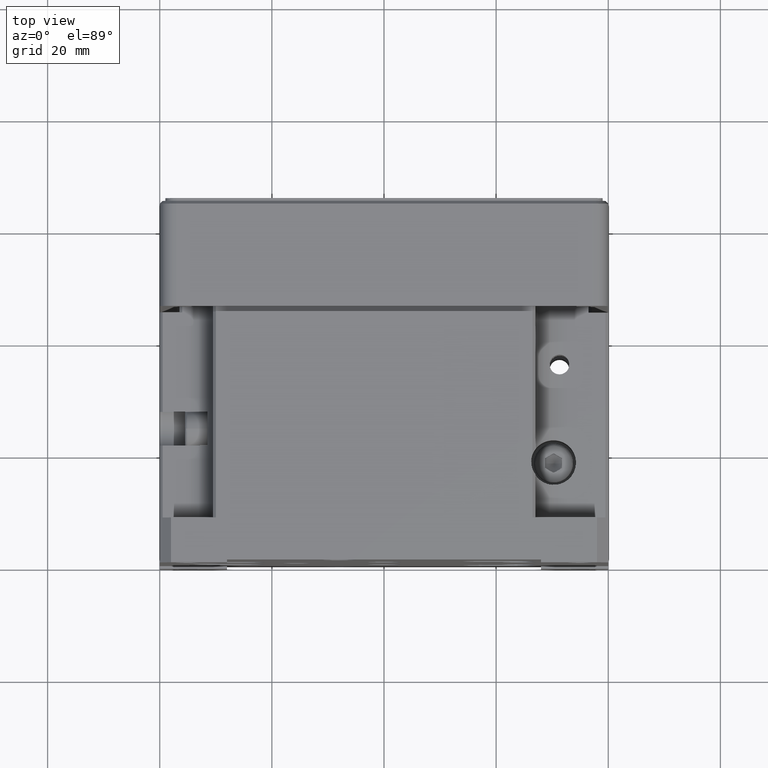
[diagram: clean part render]
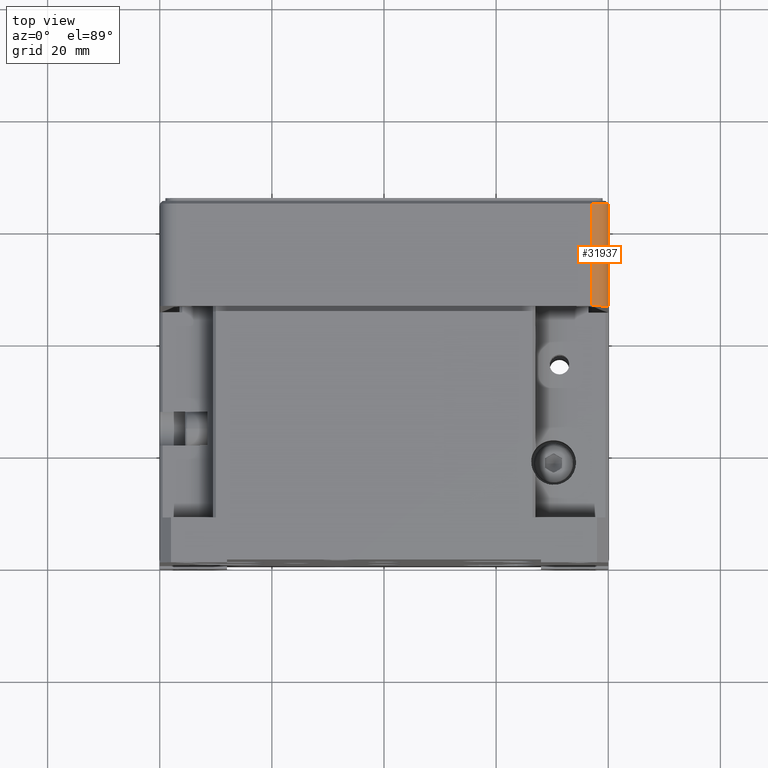
[diagram: same view with one face highlighted and labeled with its STEP entity id]
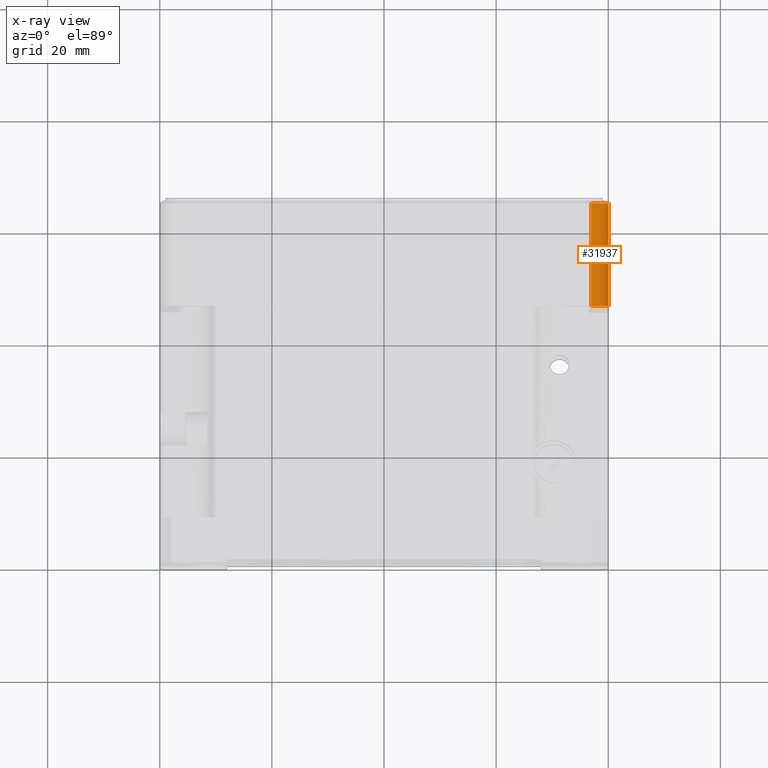
[diagram: x-ray of the same camera — body ghosted, the highlighted face saturated]
A machine part, top view. The second image highlights one B-rep face of the part: STEP entity #31937.
The next image is the same camera in x-ray: the body ghosted, the highlighted face saturated — about 0% of this face is hidden behind the body in this view.
In plain terms, the highlighted cylindrical surface (edge-blend (fillet) strip) has radius 3 mm, axis along (0, -1, 0).
Its self-contained STEP definition (entity closure, byte-faithful):
#2370 = VERTEX_POINT ( 'NONE', #35368 ) ;
#3092 = DIRECTION ( 'NONE',  ( 0.000000000000000000, 0.000000000000000000, -1.000000000000000000 ) ) ;
#3577 = DIRECTION ( 'NONE',  ( -0.000000000000000000, 1.000000000000000000, -0.000000000000000000 ) ) ;
#3825 = CYLINDRICAL_SURFACE ( 'NONE', #6919, 3.000000000000002665 ) ;
#5807 = LINE ( 'NONE', #11072, #12939 ) ;
#6391 = ORIENTED_EDGE ( 'NONE', *, *, #15008, .T. ) ;
#6778 = CARTESIAN_POINT ( 'NONE',  ( 37.00000000000000000, 45.75000000000001421, 36.99999999999998579 ) ) ;
#6919 = AXIS2_PLACEMENT_3D ( 'NONE', #26755, #32570, #35000 ) ;
#7207 = CARTESIAN_POINT ( 'NONE',  ( 40.00000000000000000, 64.50000000000000000, 36.99999999999998579 ) ) ;
#9305 = CARTESIAN_POINT ( 'NONE',  ( 37.00000000000000711, 63.99999999999647571, 40.00000000000351008 ) ) ;
#11072 = CARTESIAN_POINT ( 'NONE',  ( 37.00000000000000000, 64.50000000000000000, 39.99999999999998579 ) ) ;
#12939 = VECTOR ( 'NONE', #17465, 1000.000000000000000 ) ;
#13823 = CARTESIAN_POINT ( 'NONE',  ( 37.00000000000000000, 64.00000000000000000, 36.99999999999998579 ) ) ;
#14150 = AXIS2_PLACEMENT_3D ( 'NONE', #13823, #19822, #3092 ) ;
#15008 = EDGE_CURVE ( 'NONE', #26965, #25719, #5807, .T. ) ;
#15676 = LINE ( 'NONE', #7207, #20547 ) ;
#15924 = EDGE_CURVE ( 'NONE', #25719, #2370, #18389, .T. ) ;
#16390 = VERTEX_POINT ( 'NONE', #33391 ) ;
#17137 = AXIS2_PLACEMENT_3D ( 'NONE', #6778, #3577, #24065 ) ;
#17244 = EDGE_CURVE ( 'NONE', #2370, #16390, #15676, .T. ) ;
#17465 = DIRECTION ( 'NONE',  ( 0.000000000000000000, -1.000000000000000000, 0.000000000000000000 ) ) ;
#18127 = FACE_OUTER_BOUND ( 'NONE', #25573, .T. ) ;
#18389 = CIRCLE ( 'NONE', #17137, 3.000000000000002665 ) ;
#19822 = DIRECTION ( 'NONE',  ( 0.000000000000000000, -1.000000000000000000, 0.000000000000000000 ) ) ;
#20547 = VECTOR ( 'NONE', #21276, 1000.000000000000000 ) ;
#20720 = CIRCLE ( 'NONE', #14150, 3.000000000000002665 ) ;
#21276 = DIRECTION ( 'NONE',  ( 0.000000000000000000, 1.000000000000000000, -0.000000000000000000 ) ) ;
#24065 = DIRECTION ( 'NONE',  ( 0.000000000000000000, 0.000000000000000000, -1.000000000000000000 ) ) ;
#24893 = CARTESIAN_POINT ( 'NONE',  ( 37.00000000000000000, 45.75000000000001421, 40.00000000000000000 ) ) ;
#25573 = EDGE_LOOP ( 'NONE', ( #32414, #31034, #6391, #34640 ) ) ;
#25719 = VERTEX_POINT ( 'NONE', #24893 ) ;
#26755 = CARTESIAN_POINT ( 'NONE',  ( 37.00000000000000000, 64.50000000000000000, 36.99999999999998579 ) ) ;
#26965 = VERTEX_POINT ( 'NONE', #9305 ) ;
#31034 = ORIENTED_EDGE ( 'NONE', *, *, #31842, .T. ) ;
#31842 = EDGE_CURVE ( 'NONE', #16390, #26965, #20720, .T. ) ;
#31937 = ADVANCED_FACE ( 'NONE', ( #18127 ), #3825, .T. ) ;
#32414 = ORIENTED_EDGE ( 'NONE', *, *, #17244, .T. ) ;
#32570 = DIRECTION ( 'NONE',  ( 0.000000000000000000, -1.000000000000000000, 0.000000000000000000 ) ) ;
#33391 = CARTESIAN_POINT ( 'NONE',  ( 39.99999999996249045, 64.00000000003376499, 36.99999999999998579 ) ) ;
#34640 = ORIENTED_EDGE ( 'NONE', *, *, #15924, .T. ) ;
#35000 = DIRECTION ( 'NONE',  ( 0.000000000000000000, 0.000000000000000000, -1.000000000000000000 ) ) ;
#35368 = CARTESIAN_POINT ( 'NONE',  ( 40.00000000000000000, 45.75000000000001421, 36.99999999999998579 ) ) ;